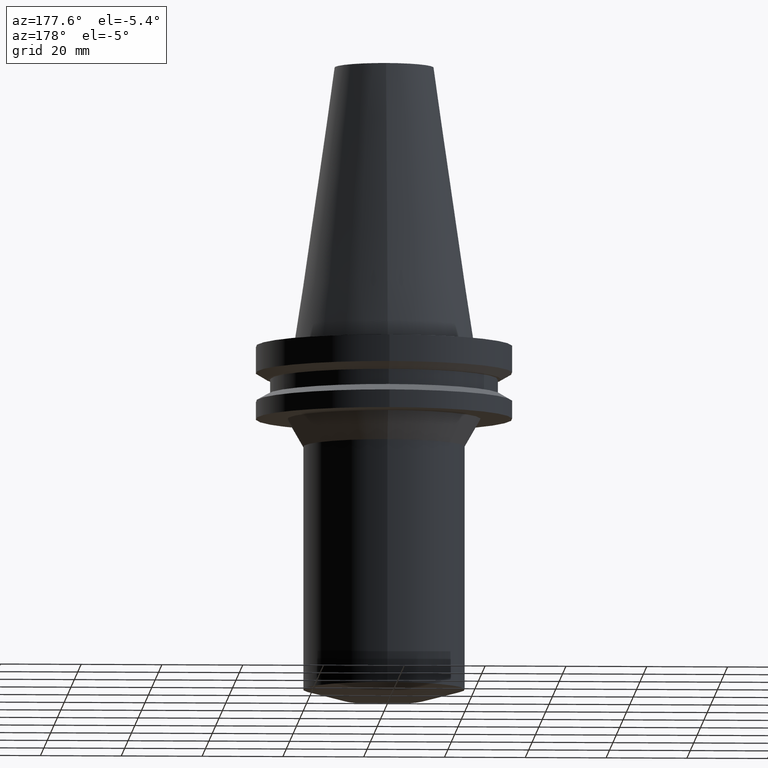
[diagram: clean part render]
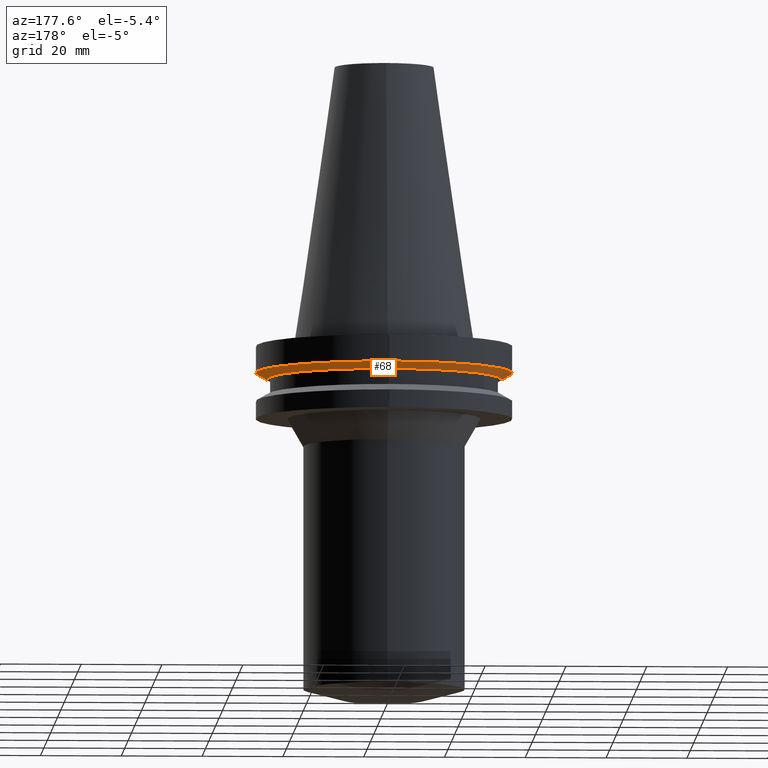
[diagram: same view with one face highlighted and labeled with its STEP entity id]
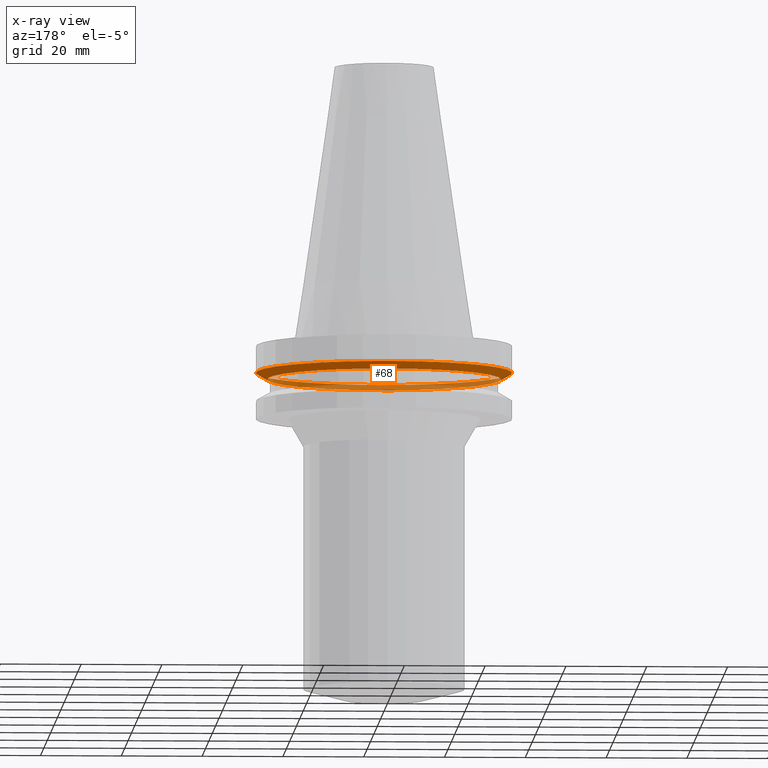
[diagram: x-ray of the same camera — body ghosted, the highlighted face saturated]
A machine part, auxiliary view. The second image highlights one B-rep face of the part: STEP entity #68.
The next image is the same camera in x-ray: the body ghosted, the highlighted face saturated — about 36% of this face is hidden behind the body in this view.
In plain terms, the highlighted conical surface has half-angle 60 deg.
Its self-contained STEP definition (entity closure, byte-faithful):
#68=ADVANCED_FACE('Unnamed[1]',(#171,#172),#173,.T.);
#99=EDGE_CURVE('Unnamed[1]',#220,#220,#221,.T.);
#121=EDGE_CURVE('Unnamed[1]',#254,#254,#255,.T.);
#171=FACE_BOUND('',#308,.T.);
#172=FACE_BOUND('',#309,.T.);
#173=CONICAL_SURFACE('',#310,30.365080955,1.04719755034994);
#220=VERTEX_POINT('',#368);
#221=CIRCLE('',#369,28.98016191);
#254=VERTEX_POINT('',#412);
#255=CIRCLE('',#413,31.75);
#308=EDGE_LOOP('',(#463));
#309=EDGE_LOOP('',(#464));
#310=AXIS2_PLACEMENT_3D('',#465,#466,#467);
#368=CARTESIAN_POINT('',(5.63337527607782E-016,28.98016191,-9.2));
#369=AXIS2_PLACEMENT_3D('',#517,#518,#519);
#412=CARTESIAN_POINT('',(4.65416804298617E-016,31.75,-7.60083323));
#413=AXIS2_PLACEMENT_3D('',#553,#554,#555);
#463=ORIENTED_EDGE('',*,*,#99,.F.);
#464=ORIENTED_EDGE('',*,*,#121,.T.);
#465=CARTESIAN_POINT('',(5.143771659532E-016,1.0287543319064E-015,-8.40041661500001));
#466=DIRECTION('',(-6.12323399573677E-017,-1.22464679914735E-016,1.0));
#467=DIRECTION('',(-1.23259516440783E-032,1.0,1.22464679914735E-016));
#517=CARTESIAN_POINT('',(5.63337527607783E-016,1.12667505521557E-015,-9.2));
#518=DIRECTION('',(6.12323399573677E-017,1.22464679914735E-016,-1.0));
#519=DIRECTION('',(-1.23259516440783E-032,1.0,1.22464679914735E-016));
#553=CARTESIAN_POINT('',(4.65416804298617E-016,9.30833608597234E-016,-7.60083323000001));
#554=DIRECTION('',(6.12323399573677E-017,1.22464679914735E-016,-1.0));
#555=DIRECTION('',(-1.23259516440783E-032,1.0,1.22464679914735E-016));